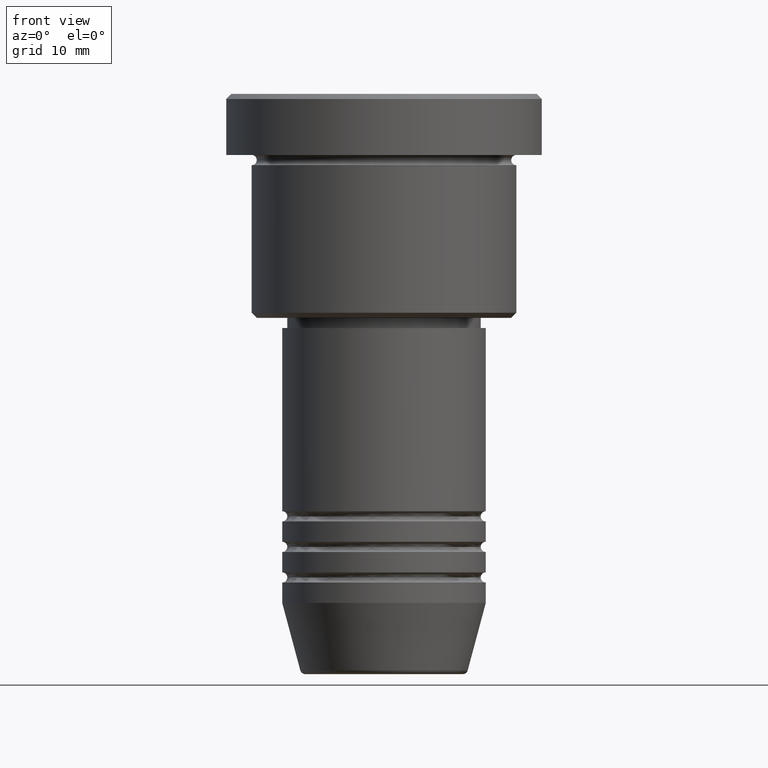
[diagram: clean part render]
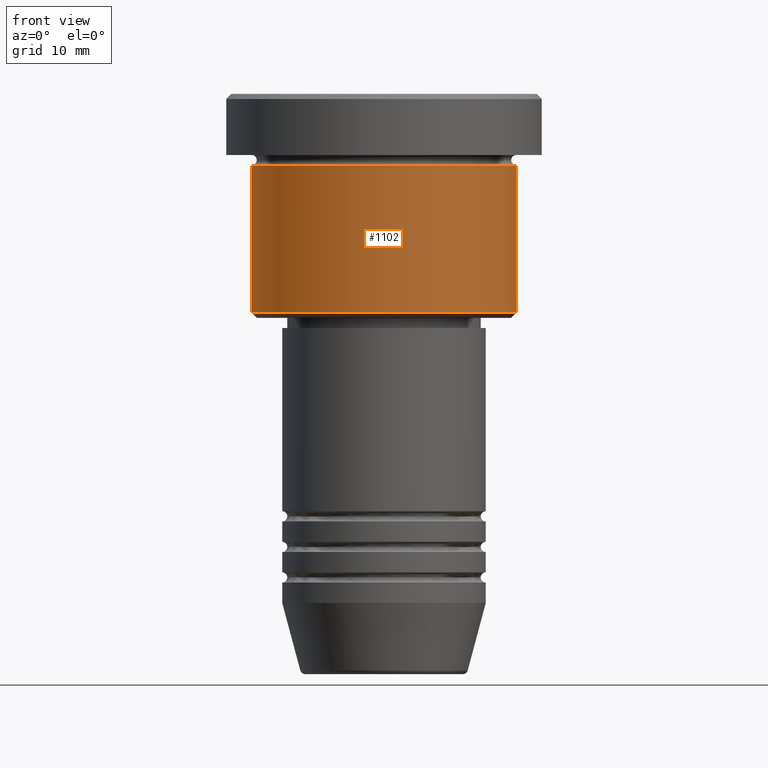
[diagram: same view with one face highlighted and labeled with its STEP entity id]
A machine part, front view. The second image highlights one B-rep face of the part: STEP entity #1102.
In plain terms, the highlighted cylindrical surface (partial cylindrical patch) has radius 13 mm, axis along (-0, -0, 1).
Its self-contained STEP definition (entity closure, byte-faithful):
#29 = ORIENTED_EDGE ( 'NONE', *, *, #575, .F. ) ;
#54 = EDGE_CURVE ( 'NONE', #1160, #793, #344, .T. ) ;
#101 = DIRECTION ( 'NONE',  ( -0.000000000000000000, -0.000000000000000000, 1.000000000000000000 ) ) ;
#131 = VECTOR ( 'NONE', #610, 1000.000000000000000 ) ;
#145 = CARTESIAN_POINT ( 'NONE',  ( 0.000000000000000000, 0.000000000000000000, -6.999999999999995559 ) ) ;
#149 = ORIENTED_EDGE ( 'NONE', *, *, #321, .T. ) ;
#237 = EDGE_CURVE ( 'NONE', #1160, #870, #959, .T. ) ;
#258 = CARTESIAN_POINT ( 'NONE',  ( -13.00000000000000000, 1.592040838891559095E-15, 0.000000000000000000 ) ) ;
#295 = CARTESIAN_POINT ( 'NONE',  ( 13.00000000000000000, 0.000000000000000000, -21.49999999999999289 ) ) ;
#321 = EDGE_CURVE ( 'NONE', #870, #701, #789, .T. ) ;
#336 = DIRECTION ( 'NONE',  ( 1.000000000000000000, 0.000000000000000000, 0.000000000000000000 ) ) ;
#339 = EDGE_LOOP ( 'NONE', ( #1142, #714, #149, #29 ) ) ;
#344 = LINE ( 'NONE', #258, #440 ) ;
#404 = CARTESIAN_POINT ( 'NONE',  ( -13.00000000000000000, 1.592040838891559095E-15, -21.49999999999999289 ) ) ;
#440 = VECTOR ( 'NONE', #1183, 1000.000000000000000 ) ;
#485 = DIRECTION ( 'NONE',  ( 1.000000000000000000, 0.000000000000000000, 0.000000000000000000 ) ) ;
#490 = CARTESIAN_POINT ( 'NONE',  ( 0.000000000000000000, 0.000000000000000000, -21.49999999999999289 ) ) ;
#525 = CIRCLE ( 'NONE', #1156, 13.00000000000000000 ) ;
#575 = EDGE_CURVE ( 'NONE', #793, #701, #525, .T. ) ;
#610 = DIRECTION ( 'NONE',  ( -0.000000000000000000, -0.000000000000000000, 1.000000000000000000 ) ) ;
#658 = CYLINDRICAL_SURFACE ( 'NONE', #674, 13.00000000000000000 ) ;
#674 = AXIS2_PLACEMENT_3D ( 'NONE', #1019, #101, #485 ) ;
#701 = VERTEX_POINT ( 'NONE', #1093 ) ;
#714 = ORIENTED_EDGE ( 'NONE', *, *, #237, .T. ) ;
#756 = DIRECTION ( 'NONE',  ( -0.000000000000000000, -0.000000000000000000, 1.000000000000000000 ) ) ;
#757 = FACE_OUTER_BOUND ( 'NONE', #339, .T. ) ;
#789 = LINE ( 'NONE', #868, #131 ) ;
#793 = VERTEX_POINT ( 'NONE', #951 ) ;
#805 = AXIS2_PLACEMENT_3D ( 'NONE', #490, #756, #1124 ) ;
#868 = CARTESIAN_POINT ( 'NONE',  ( 13.00000000000000000, 0.000000000000000000, 0.000000000000000000 ) ) ;
#870 = VERTEX_POINT ( 'NONE', #295 ) ;
#886 = DIRECTION ( 'NONE',  ( -0.000000000000000000, -0.000000000000000000, 1.000000000000000000 ) ) ;
#951 = CARTESIAN_POINT ( 'NONE',  ( -13.00000000000000000, 1.592040838891559095E-15, -6.999999999999995559 ) ) ;
#959 = CIRCLE ( 'NONE', #805, 13.00000000000000000 ) ;
#1019 = CARTESIAN_POINT ( 'NONE',  ( 0.000000000000000000, 0.000000000000000000, 0.000000000000000000 ) ) ;
#1093 = CARTESIAN_POINT ( 'NONE',  ( 13.00000000000000000, 0.000000000000000000, -6.999999999999995559 ) ) ;
#1102 = ADVANCED_FACE ( 'NONE', ( #757 ), #658, .T. ) ;
#1124 = DIRECTION ( 'NONE',  ( -1.000000000000000000, 0.000000000000000000, 0.000000000000000000 ) ) ;
#1142 = ORIENTED_EDGE ( 'NONE', *, *, #54, .F. ) ;
#1156 = AXIS2_PLACEMENT_3D ( 'NONE', #145, #886, #336 ) ;
#1160 = VERTEX_POINT ( 'NONE', #404 ) ;
#1183 = DIRECTION ( 'NONE',  ( -0.000000000000000000, -0.000000000000000000, 1.000000000000000000 ) ) ;